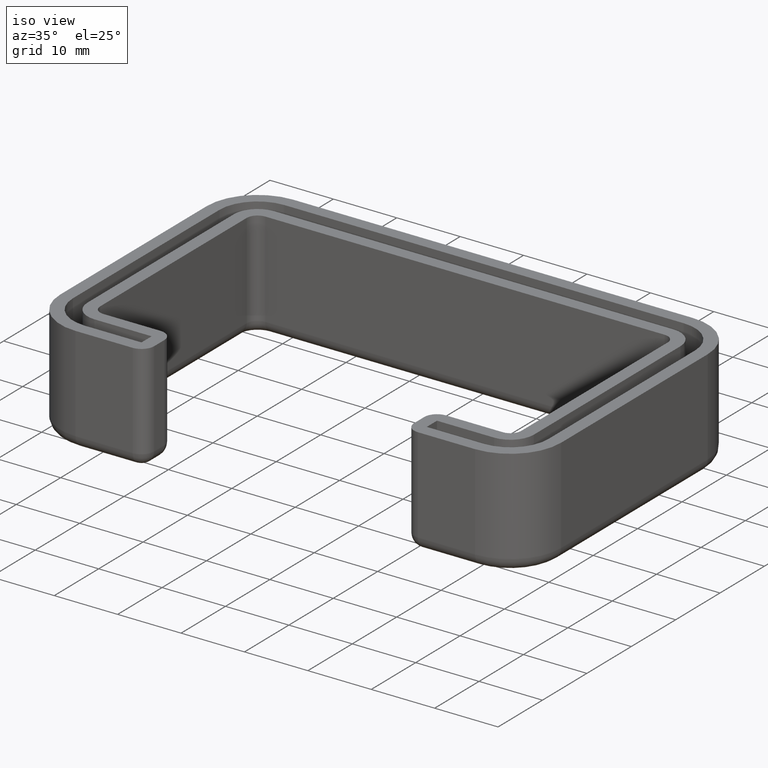
[diagram: clean part render]
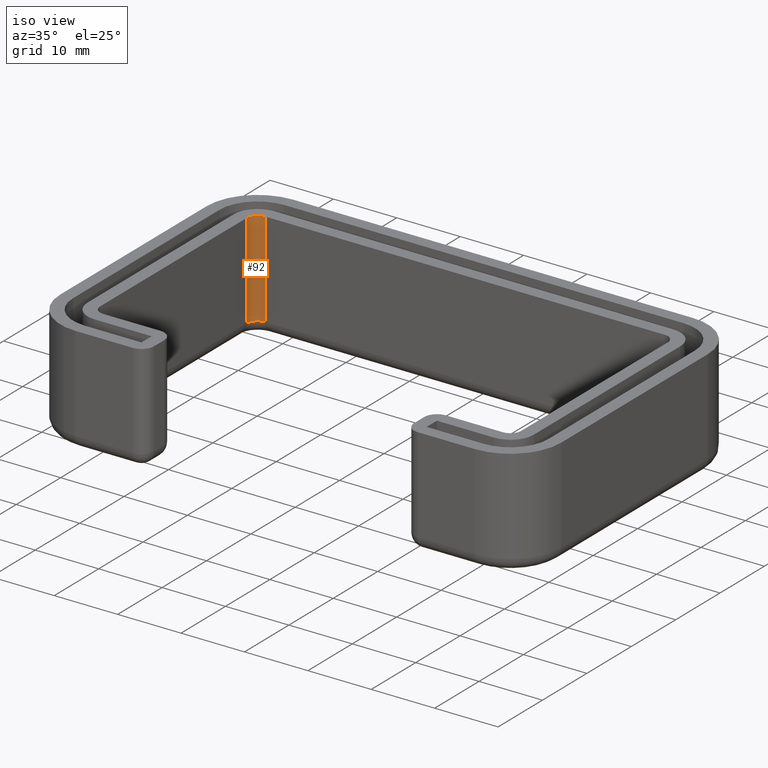
[diagram: same view with one face highlighted and labeled with its STEP entity id]
A machine part, iso view. The second image highlights one B-rep face of the part: STEP entity #92.
In plain terms, the highlighted cylindrical surface (edge-blend (fillet) strip) has radius 1.7 mm, axis along (0, 0, 1).
Its self-contained STEP definition (entity closure, byte-faithful):
#92 = ADVANCED_FACE( '', ( #182 ), #183, .F. );
#182 = FACE_OUTER_BOUND( '', #325, .T. );
#183 = CYLINDRICAL_SURFACE( '', #326, 1.70000000000000 );
#325 = EDGE_LOOP( '', ( #623, #624, #625, #626 ) );
#326 = AXIS2_PLACEMENT_3D( '', #627, #628, #629 );
#623 = ORIENTED_EDGE( '', *, *, #1108, .T. );
#624 = ORIENTED_EDGE( '', *, *, #1105, .T. );
#625 = ORIENTED_EDGE( '', *, *, #1109, .F. );
#626 = ORIENTED_EDGE( '', *, *, #1005, .T. );
#627 = CARTESIAN_POINT( '', ( -31.5000000000002, 16.5000000000001, 1.73472347597681E-015 ) );
#628 = DIRECTION( '', ( 0.000000000000000, 0.000000000000000, 1.00000000000000 ) );
#629 = DIRECTION( '', ( 1.00000000000000, 0.000000000000000, 0.000000000000000 ) );
#1005 = EDGE_CURVE( '', #1189, #1187, #1190, .T. );
#1105 = EDGE_CURVE( '', #1362, #1373, #1375, .T. );
#1108 = EDGE_CURVE( '', #1187, #1362, #1378, .T. );
#1109 = EDGE_CURVE( '', #1189, #1373, #1379, .T. );
#1187 = VERTEX_POINT( '', #1474 );
#1189 = VERTEX_POINT( '', #1477 );
#1190 = CIRCLE( '', #1478, 1.70000000000000 );
#1362 = VERTEX_POINT( '', #1702 );
#1373 = VERTEX_POINT( '', #1715 );
#1375 = CIRCLE( '', #1717, 1.70000000000000 );
#1378 = LINE( '', #1722, #1723 );
#1379 = LINE( '', #1724, #1725 );
#1474 = CARTESIAN_POINT( '', ( -33.2000000000002, 16.5000000000001, 1.73472347597681E-015 ) );
#1477 = CARTESIAN_POINT( '', ( -31.5000000000002, 18.2000000000001, 1.73472347597681E-015 ) );
#1478 = AXIS2_PLACEMENT_3D( '', #1859, #1860, #1861 );
#1702 = CARTESIAN_POINT( '', ( -33.2000000000002, 16.5000000000001, -15.0000000000000 ) );
#1715 = CARTESIAN_POINT( '', ( -31.5000000000002, 18.2000000000001, -15.0000000000000 ) );
#1717 = AXIS2_PLACEMENT_3D( '', #2051, #2052, #2053 );
#1722 = CARTESIAN_POINT( '', ( -33.2000000000002, 16.5000000000001, 1.73472347597681E-015 ) );
#1723 = VECTOR( '', #2056, 1000.00000000000 );
#1724 = CARTESIAN_POINT( '', ( -31.5000000000002, 18.2000000000001, 1.73472347597681E-015 ) );
#1725 = VECTOR( '', #2057, 1000.00000000000 );
#1859 = CARTESIAN_POINT( '', ( -31.5000000000002, 16.5000000000001, 1.73472347597681E-015 ) );
#1860 = DIRECTION( '', ( 0.000000000000000, 0.000000000000000, 1.00000000000000 ) );
#1861 = DIRECTION( '', ( -0.707106781186545, 0.707106781186550, 0.000000000000000 ) );
#2051 = CARTESIAN_POINT( '', ( -31.5000000000002, 16.5000000000001, -15.0000000000000 ) );
#2052 = DIRECTION( '', ( 0.000000000000000, 0.000000000000000, -1.00000000000000 ) );
#2053 = DIRECTION( '', ( -1.00000000000000, 0.000000000000000, 0.000000000000000 ) );
#2056 = DIRECTION( '', ( 0.000000000000000, 0.000000000000000, -1.00000000000000 ) );
#2057 = DIRECTION( '', ( 0.000000000000000, 0.000000000000000, -1.00000000000000 ) );